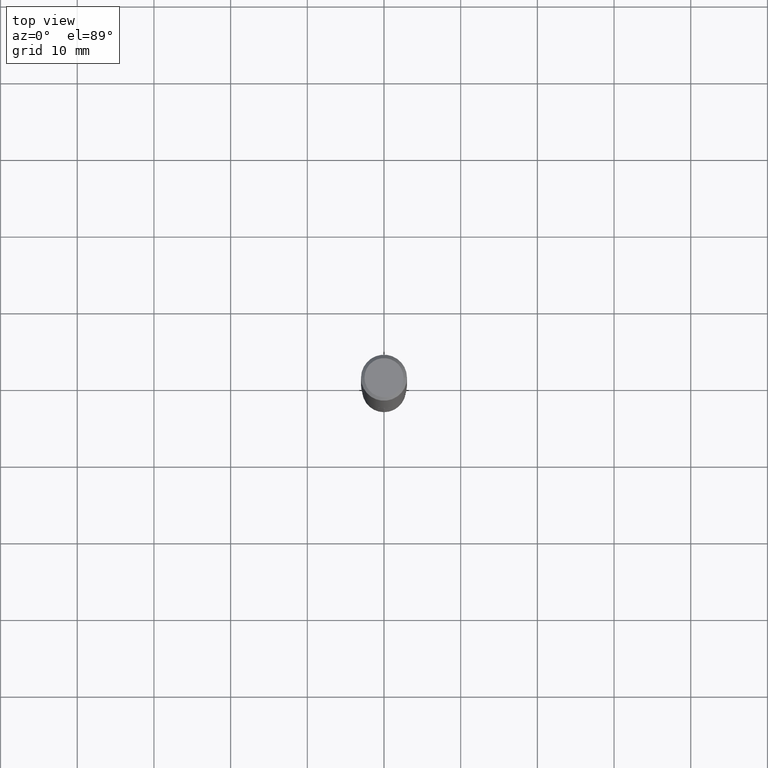
[diagram: clean part render]
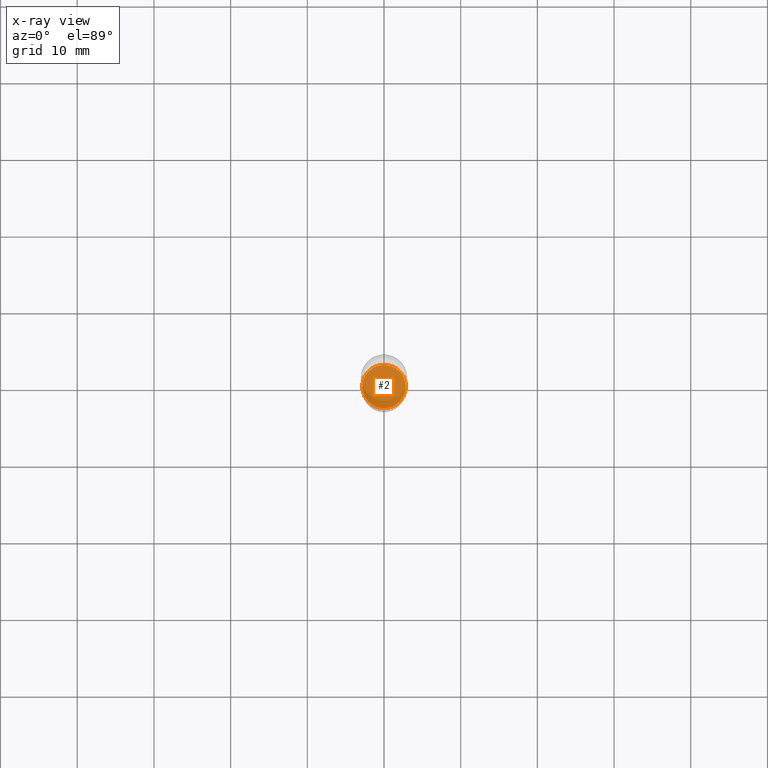
[diagram: x-ray — body ghosted, one internal face saturated and labeled with its STEP entity id]
A machine part, top view, then the same camera in x-ray: the body is ghosted and one INTERNAL B-rep face — a face not visible from any outside direction — is saturated and labeled: STEP entity #2.
In plain terms, the highlighted planar face has unit normal (-0, 0, 1).
Its self-contained STEP definition (entity closure, byte-faithful):
#2 = ADVANCED_FACE ( 'NONE', ( #265 ), #373, .F. ) ;
#26 = CARTESIAN_POINT ( 'NONE',  ( 0.1116999999999999937, -1.005406966333271778E-14, -2.656200000000000117 ) ) ;
#67 = ORIENTED_EDGE ( 'NONE', *, *, #94, .F. ) ;
#85 = CARTESIAN_POINT ( 'NONE',  ( 6.495654242988960253E-29, -9.274072732235163168E-15, -2.656200000000000117 ) ) ;
#94 = EDGE_CURVE ( 'NONE', #357, #384, #301, .T. ) ;
#100 = EDGE_CURVE ( 'NONE', #384, #357, #350, .T. ) ;
#114 = CARTESIAN_POINT ( 'NONE',  ( 6.495654242988960253E-29, -9.274072732235163168E-15, -2.656200000000000117 ) ) ;
#119 = DIRECTION ( 'NONE',  ( 1.000000000000000000, -6.982962677686265922E-15, 4.876176775795935793E-29 ) ) ;
#121 = AXIS2_PLACEMENT_3D ( 'NONE', #85, #435, #411 ) ;
#179 = ORIENTED_EDGE ( 'NONE', *, *, #100, .F. ) ;
#195 = DIRECTION ( 'NONE',  ( -2.438088387897960049E-29, 3.491481338843145188E-15, 1.000000000000000000 ) ) ;
#200 = DIRECTION ( 'NONE',  ( 1.000000000000000000, -6.982962677686262766E-15, 0.000000000000000000 ) ) ;
#260 = CARTESIAN_POINT ( 'NONE',  ( -0.1116999999999999937, -8.477747269217019907E-15, -2.656200000000000117 ) ) ;
#265 = FACE_OUTER_BOUND ( 'NONE', #423, .T. ) ;
#269 = CARTESIAN_POINT ( 'NONE',  ( 6.495654242988960253E-29, -9.274072732235163168E-15, -2.656200000000000117 ) ) ;
#301 = CIRCLE ( 'NONE', #354, 0.1116999999999999937 ) ;
#350 = CIRCLE ( 'NONE', #121, 0.1116999999999999937 ) ;
#354 = AXIS2_PLACEMENT_3D ( 'NONE', #269, #403, #200 ) ;
#357 = VERTEX_POINT ( 'NONE', #260 ) ;
#373 = PLANE ( 'NONE',  #448 ) ;
#384 = VERTEX_POINT ( 'NONE', #26 ) ;
#403 = DIRECTION ( 'NONE',  ( -2.445468806185136597E-29, 3.491481338843145583E-15, 1.000000000000000000 ) ) ;
#411 = DIRECTION ( 'NONE',  ( 1.000000000000000000, -6.982962677686262766E-15, 0.000000000000000000 ) ) ;
#423 = EDGE_LOOP ( 'NONE', ( #179, #67 ) ) ;
#435 = DIRECTION ( 'NONE',  ( -2.445468806185136597E-29, 3.491481338843145583E-15, 1.000000000000000000 ) ) ;
#448 = AXIS2_PLACEMENT_3D ( 'NONE', #114, #195, #119 ) ;